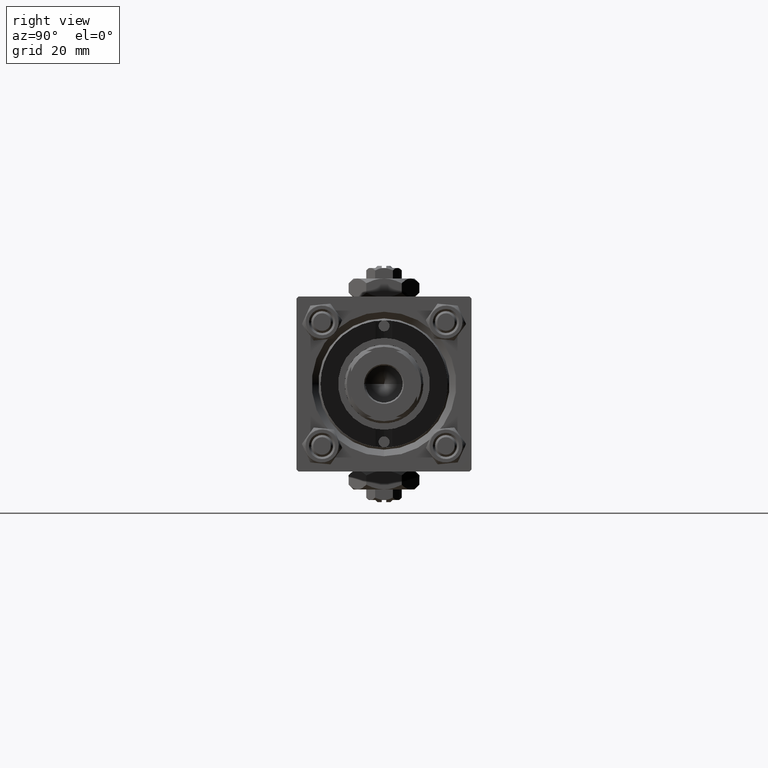
[diagram: clean part render]
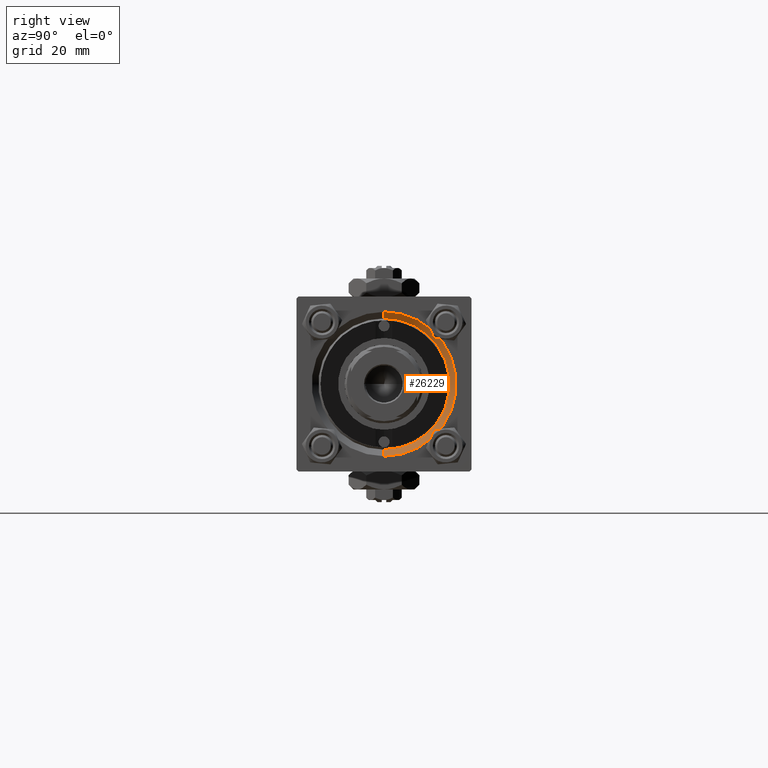
[diagram: same view with one face highlighted and labeled with its STEP entity id]
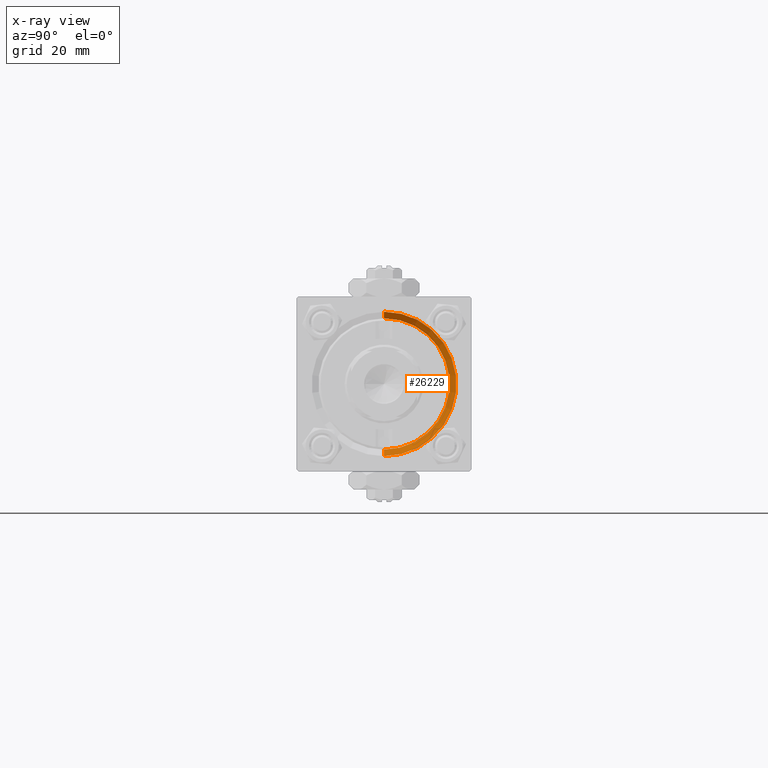
[diagram: x-ray of the same camera — body ghosted, the highlighted face saturated]
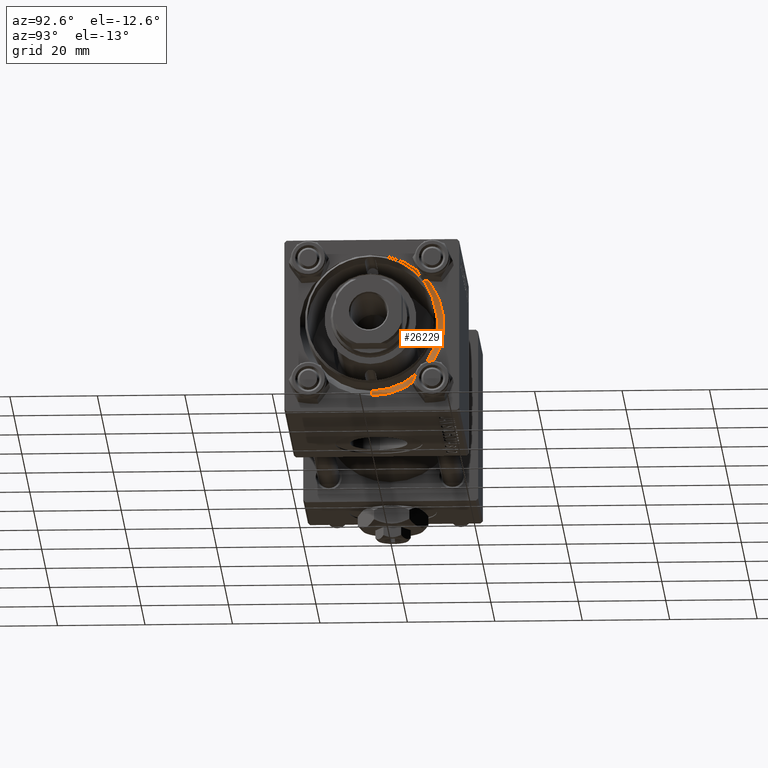
[diagram: same view with one face highlighted and labeled with its STEP entity id]
A machine part, right view. The second image highlights one B-rep face of the part: STEP entity #26229.
The next image is the same camera in x-ray: the body ghosted, the highlighted face saturated — about 0% of this face is hidden behind the body in this view.
A second angle (auxiliary view) of the same face is appended — the face is thin or edge-on in the first view.
In plain terms, the highlighted conical surface has half-angle 45 deg.
Its self-contained STEP definition (entity closure, byte-faithful):
#802 = DIRECTION ( 'NONE',  ( 0.7071067811865474617, 8.659560562354932858E-17, 0.7071067811865474617 ) ) ;
#1217 = AXIS2_PLACEMENT_3D ( 'NONE', #29724, #17893, #50162 ) ;
#4932 = EDGE_LOOP ( 'NONE', ( #25901, #47421, #25790, #38146 ) ) ;
#5731 = VECTOR ( 'NONE', #802, 1000.000000000000114 ) ;
#6117 = EDGE_CURVE ( 'NONE', #44658, #49382, #21345, .T. ) ;
#8390 = CARTESIAN_POINT ( 'NONE',  ( 117.5000000000000000, 0.000000000000000000, -15.00000000000000000 ) ) ;
#9519 = DIRECTION ( 'NONE',  ( 1.000000000000000000, 0.000000000000000000, 0.000000000000000000 ) ) ;
#10131 = VERTEX_POINT ( 'NONE', #10631 ) ;
#10631 = CARTESIAN_POINT ( 'NONE',  ( 119.0000000000000142, 2.020667218593134678E-15, 16.50000000000001421 ) ) ;
#17330 = LINE ( 'NONE', #29668, #5731 ) ;
#17893 = DIRECTION ( 'NONE',  ( 1.000000000000000000, 0.000000000000000000, 0.000000000000000000 ) ) ;
#19093 = EDGE_CURVE ( 'NONE', #44658, #47760, #51587, .T. ) ;
#19454 = EDGE_CURVE ( 'NONE', #49382, #10131, #17330, .T. ) ;
#21345 = CIRCLE ( 'NONE', #1217, 15.00000000000000000 ) ;
#22367 = CIRCLE ( 'NONE', #35784, 16.50000000000001421 ) ;
#23011 = CARTESIAN_POINT ( 'NONE',  ( 117.5000000000000000, 0.000000000000000000, -15.00000000000000000 ) ) ;
#25790 = ORIENTED_EDGE ( 'NONE', *, *, #19093, .T. ) ;
#25901 = ORIENTED_EDGE ( 'NONE', *, *, #19454, .F. ) ;
#26229 = ADVANCED_FACE ( 'NONE', ( #26331 ), #34491, .F. ) ;
#26331 = FACE_OUTER_BOUND ( 'NONE', #4932, .T. ) ;
#27875 = CARTESIAN_POINT ( 'NONE',  ( 117.5000000000000000, 1.836970198721029589E-15, 15.00000000000000000 ) ) ;
#29668 = CARTESIAN_POINT ( 'NONE',  ( 117.5000000000000000, 1.836970198721029589E-15, 15.00000000000000000 ) ) ;
#29724 = CARTESIAN_POINT ( 'NONE',  ( 117.5000000000000000, 0.000000000000000000, 0.000000000000000000 ) ) ;
#33411 = VECTOR ( 'NONE', #38995, 1000.000000000000114 ) ;
#33445 = CARTESIAN_POINT ( 'NONE',  ( 119.0000000000000142, 0.000000000000000000, -16.50000000000001421 ) ) ;
#34201 = CARTESIAN_POINT ( 'NONE',  ( 117.5000000000000000, 0.000000000000000000, 0.000000000000000000 ) ) ;
#34491 = CONICAL_SURFACE ( 'NONE', #37836, 15.00000000000000000, 0.7853981633974482790 ) ;
#34773 = DIRECTION ( 'NONE',  ( -1.000000000000000000, -0.000000000000000000, -0.000000000000000000 ) ) ;
#35784 = AXIS2_PLACEMENT_3D ( 'NONE', #43414, #34773, #42887 ) ;
#37836 = AXIS2_PLACEMENT_3D ( 'NONE', #34201, #9519, #50185 ) ;
#38146 = ORIENTED_EDGE ( 'NONE', *, *, #42355, .F. ) ;
#38995 = DIRECTION ( 'NONE',  ( 0.7071067811865474617, 0.000000000000000000, -0.7071067811865474617 ) ) ;
#42355 = EDGE_CURVE ( 'NONE', #10131, #47760, #22367, .T. ) ;
#42887 = DIRECTION ( 'NONE',  ( 0.000000000000000000, 0.000000000000000000, 1.000000000000000000 ) ) ;
#43414 = CARTESIAN_POINT ( 'NONE',  ( 119.0000000000000142, 0.000000000000000000, 0.000000000000000000 ) ) ;
#44658 = VERTEX_POINT ( 'NONE', #8390 ) ;
#47421 = ORIENTED_EDGE ( 'NONE', *, *, #6117, .F. ) ;
#47760 = VERTEX_POINT ( 'NONE', #33445 ) ;
#49382 = VERTEX_POINT ( 'NONE', #27875 ) ;
#50162 = DIRECTION ( 'NONE',  ( 0.000000000000000000, 0.000000000000000000, 1.000000000000000000 ) ) ;
#50185 = DIRECTION ( 'NONE',  ( 0.000000000000000000, 0.000000000000000000, -1.000000000000000000 ) ) ;
#51587 = LINE ( 'NONE', #23011, #33411 ) ;